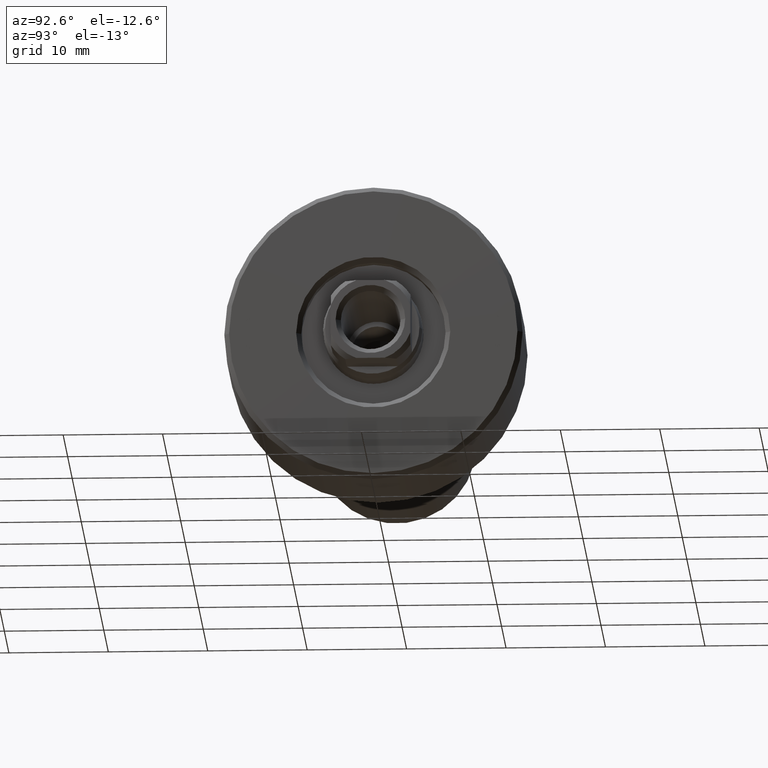
[diagram: clean part render]
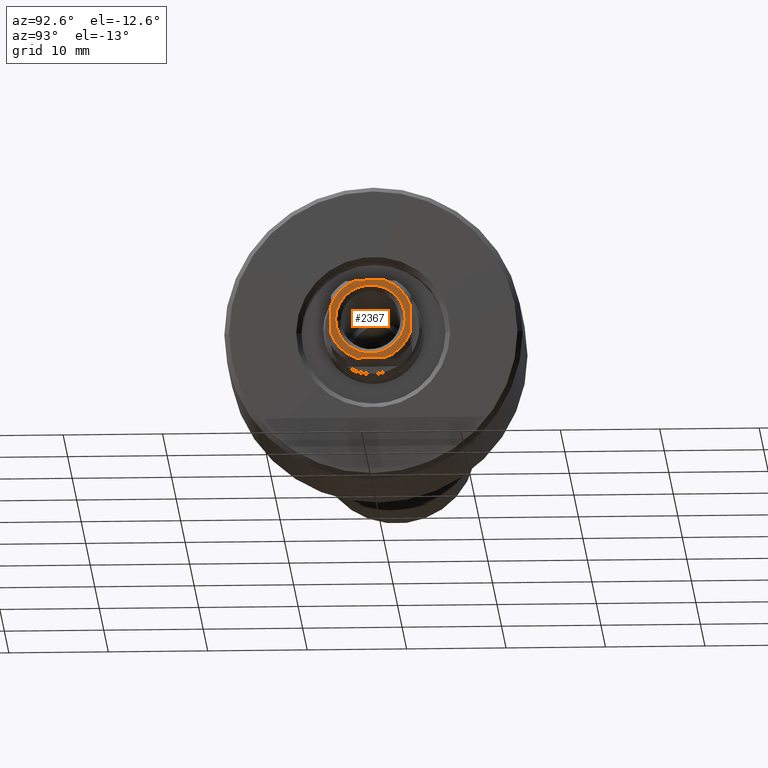
[diagram: same view with one face highlighted and labeled with its STEP entity id]
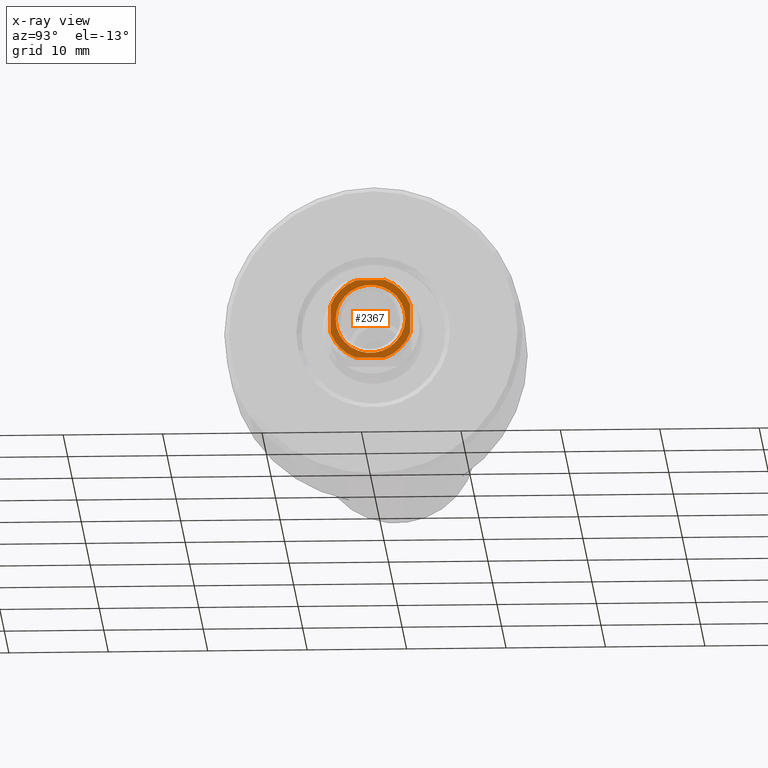
[diagram: x-ray of the same camera — body ghosted, the highlighted face saturated]
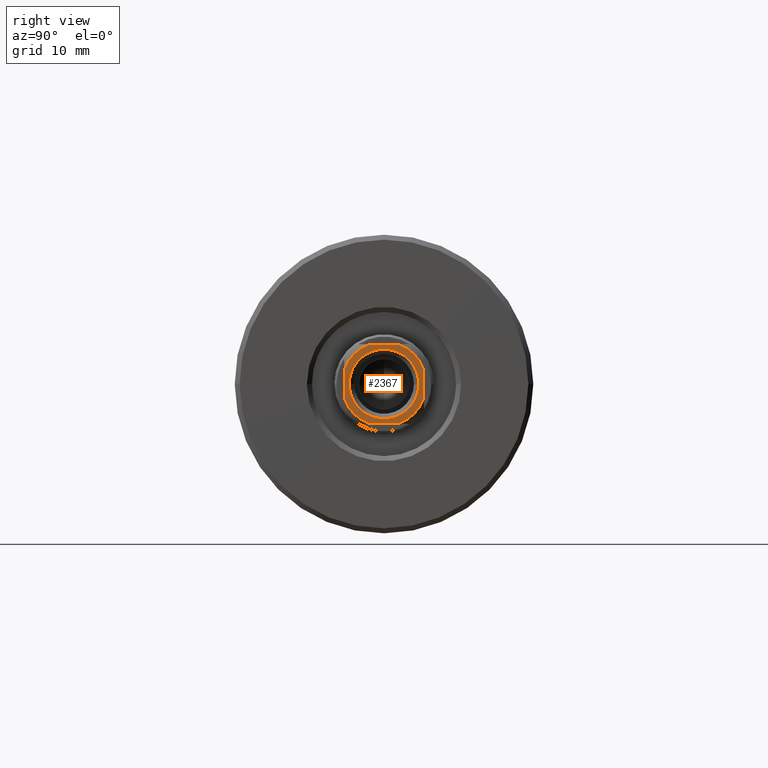
[diagram: same view with one face highlighted and labeled with its STEP entity id]
A machine part, auxiliary view. The second image highlights one B-rep face of the part: STEP entity #2367.
The next image is the same camera in x-ray: the body ghosted, the highlighted face saturated — about 0% of this face is hidden behind the body in this view.
A second angle (right view) of the same face is appended — the face is thin or edge-on in the first view.
In plain terms, the highlighted planar face has unit normal (-1, -0, 0).
Its self-contained STEP definition (entity closure, byte-faithful):
#41 = CARTESIAN_POINT ( 'NONE',  ( 60.00000000000000711, 1.436140661638271698, 3.999999999998825828 ) ) ;
#76 = ORIENTED_EDGE ( 'NONE', *, *, #586, .F. ) ;
#77 = LINE ( 'NONE', #1948, #2352 ) ;
#80 = VERTEX_POINT ( 'NONE', #2415 ) ;
#90 = CARTESIAN_POINT ( 'NONE',  ( 59.99999999999998579, 6.417253932414392401E-16, 0.000000000000000000 ) ) ;
#103 = DIRECTION ( 'NONE',  ( 0.000000000000000000, -1.000000000000000000, 0.000000000000000000 ) ) ;
#150 = DIRECTION ( 'NONE',  ( 1.000000000000000000, 1.069542322069065801E-17, 0.000000000000000000 ) ) ;
#193 = LINE ( 'NONE', #607, #1958 ) ;
#209 = AXIS2_PLACEMENT_3D ( 'NONE', #1116, #2262, #2227 ) ;
#246 = AXIS2_PLACEMENT_3D ( 'NONE', #908, #899, #1333 ) ;
#250 = DIRECTION ( 'NONE',  ( 0.000000000000000000, 1.692916766750681384E-16, -1.000000000000000000 ) ) ;
#326 = AXIS2_PLACEMENT_3D ( 'NONE', #2184, #493, #1080 ) ;
#342 = CARTESIAN_POINT ( 'NONE',  ( 59.99999999999996447, -1.436140661638316773, -3.999999999998825828 ) ) ;
#371 = DIRECTION ( 'NONE',  ( 1.625200096080654050E-14, 1.000000000000000000, 1.692916766750681384E-16 ) ) ;
#416 = DIRECTION ( 'NONE',  ( 1.000000000000000000, 1.069542322069065801E-17, 0.000000000000000000 ) ) ;
#417 = CIRCLE ( 'NONE', #1329, 4.250000000000161648 ) ;
#418 = VECTOR ( 'NONE', #2414, 1000.000000000000000 ) ;
#420 = CIRCLE ( 'NONE', #2008, 4.250000000000166089 ) ;
#428 = VERTEX_POINT ( 'NONE', #1849 ) ;
#450 = ORIENTED_EDGE ( 'NONE', *, *, #2191, .T. ) ;
#493 = DIRECTION ( 'NONE',  ( 1.000000000000000000, 1.069542322069065801E-17, 0.000000000000000000 ) ) ;
#508 = EDGE_CURVE ( 'NONE', #80, #1786, #2012, .T. ) ;
#514 = PLANE ( 'NONE',  #246 ) ;
#519 = CARTESIAN_POINT ( 'NONE',  ( 60.00000000000005684, 3.999999999997831512, -1.436140661641029048 ) ) ;
#556 = FACE_OUTER_BOUND ( 'NONE', #1548, .T. ) ;
#586 = EDGE_CURVE ( 'NONE', #428, #1983, #1873, .T. ) ;
#607 = CARTESIAN_POINT ( 'NONE',  ( 59.99999999999991473, -3.999999999999817923, -2.561737691489840429 ) ) ;
#643 = ORIENTED_EDGE ( 'NONE', *, *, #985, .T. ) ;
#646 = VERTEX_POINT ( 'NONE', #1127 ) ;
#737 = CIRCLE ( 'NONE', #209, 3.500000000000160316 ) ;
#816 = EDGE_CURVE ( 'NONE', #1349, #1983, #1975, .T. ) ;
#852 = DIRECTION ( 'NONE',  ( 0.000000000000000000, -1.000000000000000000, 8.881784197001252323E-16 ) ) ;
#899 = DIRECTION ( 'NONE',  ( -1.000000000000000000, -1.069542322069065801E-17, 0.000000000000000000 ) ) ;
#908 = CARTESIAN_POINT ( 'NONE',  ( 59.99999999999998579, 8.673617379884037444E-16, 0.000000000000000000 ) ) ;
#914 = DIRECTION ( 'NONE',  ( 0.000000000000000000, -1.000000000000000000, 8.881784197001252323E-16 ) ) ;
#984 = CARTESIAN_POINT ( 'NONE',  ( 59.99999999999998579, -3.999999999999817923, -1.436140661635549431 ) ) ;
#985 = EDGE_CURVE ( 'NONE', #1677, #1786, #1325, .T. ) ;
#1028 = AXIS2_PLACEMENT_3D ( 'NONE', #1615, #2172, #103 ) ;
#1073 = EDGE_CURVE ( 'NONE', #1681, #1872, #737, .T. ) ;
#1080 = DIRECTION ( 'NONE',  ( 0.000000000000000000, -1.000000000000000000, 0.000000000000000000 ) ) ;
#1084 = EDGE_LOOP ( 'NONE', ( #2086, #450 ) ) ;
#1109 = CARTESIAN_POINT ( 'NONE',  ( 60.00000000000002842, 2.561737691488845226, -3.999999999998824940 ) ) ;
#1116 = CARTESIAN_POINT ( 'NONE',  ( 59.99999999999998579, -9.943588796953380466E-13, 0.000000000000000000 ) ) ;
#1127 = CARTESIAN_POINT ( 'NONE',  ( 59.99999999999991473, -3.999999999999819700, 1.436140661635499249 ) ) ;
#1229 = EDGE_CURVE ( 'NONE', #1349, #1379, #77, .T. ) ;
#1230 = ORIENTED_EDGE ( 'NONE', *, *, #508, .F. ) ;
#1325 = CIRCLE ( 'NONE', #326, 4.250000000000181188 ) ;
#1329 = AXIS2_PLACEMENT_3D ( 'NONE', #2170, #150, #914 ) ;
#1333 = DIRECTION ( 'NONE',  ( 1.069542322069065801E-17, -1.000000000000000000, 0.000000000000000000 ) ) ;
#1349 = VERTEX_POINT ( 'NONE', #2292 ) ;
#1379 = VERTEX_POINT ( 'NONE', #519 ) ;
#1430 = ORIENTED_EDGE ( 'NONE', *, *, #2403, .F. ) ;
#1471 = EDGE_CURVE ( 'NONE', #80, #1379, #417, .T. ) ;
#1548 = EDGE_LOOP ( 'NONE', ( #1230, #1938, #1607, #1589, #76, #1901, #1430, #643 ) ) ;
#1585 = CARTESIAN_POINT ( 'NONE',  ( 59.99999999999998579, 6.417253932414392401E-16, 0.000000000000000000 ) ) ;
#1589 = ORIENTED_EDGE ( 'NONE', *, *, #816, .T. ) ;
#1607 = ORIENTED_EDGE ( 'NONE', *, *, #1229, .F. ) ;
#1615 = CARTESIAN_POINT ( 'NONE',  ( 59.99999999999998579, -9.943588796953380466E-13, 0.000000000000000000 ) ) ;
#1620 = AXIS2_PLACEMENT_3D ( 'NONE', #90, #416, #852 ) ;
#1677 = VERTEX_POINT ( 'NONE', #984 ) ;
#1681 = VERTEX_POINT ( 'NONE', #1739 ) ;
#1701 = DIRECTION ( 'NONE',  ( 0.000000000000000000, -5.078750300252043906E-16, 1.000000000000000000 ) ) ;
#1703 = EDGE_CURVE ( 'NONE', #428, #646, #420, .T. ) ;
#1739 = CARTESIAN_POINT ( 'NONE',  ( 59.99999999999998579, 3.499999999999166889, 0.000000000000000000 ) ) ;
#1764 = DIRECTION ( 'NONE',  ( 0.000000000000000000, -1.000000000000000000, 5.329070518200751394E-15 ) ) ;
#1777 = CIRCLE ( 'NONE', #1028, 3.500000000000160316 ) ;
#1786 = VERTEX_POINT ( 'NONE', #342 ) ;
#1849 = CARTESIAN_POINT ( 'NONE',  ( 59.99999999999996447, -1.436140661638269700, 3.999999999998825828 ) ) ;
#1872 = VERTEX_POINT ( 'NONE', #1879 ) ;
#1873 = LINE ( 'NONE', #2071, #2115 ) ;
#1879 = CARTESIAN_POINT ( 'NONE',  ( 59.99999999999998579, -3.500000000001269651, 4.286263797016072847E-16 ) ) ;
#1901 = ORIENTED_EDGE ( 'NONE', *, *, #1703, .T. ) ;
#1938 = ORIENTED_EDGE ( 'NONE', *, *, #1471, .T. ) ;
#1948 = CARTESIAN_POINT ( 'NONE',  ( 60.00000000000005684, 3.999999999997830624, 2.561737691489839985 ) ) ;
#1953 = DIRECTION ( 'NONE',  ( 1.000000000000000000, 1.069542322069065801E-17, 0.000000000000000000 ) ) ;
#1958 = VECTOR ( 'NONE', #1701, 1000.000000000000000 ) ;
#1975 = CIRCLE ( 'NONE', #1620, 4.250000000000166089 ) ;
#1983 = VERTEX_POINT ( 'NONE', #41 ) ;
#2008 = AXIS2_PLACEMENT_3D ( 'NONE', #1585, #1953, #1764 ) ;
#2012 = LINE ( 'NONE', #1109, #418 ) ;
#2071 = CARTESIAN_POINT ( 'NONE',  ( 59.99999999999994316, -2.561737691490833857, 3.999999999998824940 ) ) ;
#2086 = ORIENTED_EDGE ( 'NONE', *, *, #1073, .T. ) ;
#2115 = VECTOR ( 'NONE', #371, 1000.000000000000000 ) ;
#2170 = CARTESIAN_POINT ( 'NONE',  ( 59.99999999999998579, 6.417253932414392401E-16, 0.000000000000000000 ) ) ;
#2172 = DIRECTION ( 'NONE',  ( -1.000000000000000000, -1.069542322069065801E-17, -0.000000000000000000 ) ) ;
#2184 = CARTESIAN_POINT ( 'NONE',  ( 59.99999999999998579, 6.417253932414392401E-16, 0.000000000000000000 ) ) ;
#2191 = EDGE_CURVE ( 'NONE', #1872, #1681, #1777, .T. ) ;
#2227 = DIRECTION ( 'NONE',  ( 0.000000000000000000, -1.000000000000000000, 0.000000000000000000 ) ) ;
#2250 = FACE_BOUND ( 'NONE', #1084, .T. ) ;
#2262 = DIRECTION ( 'NONE',  ( -1.000000000000000000, -1.069542322069065801E-17, -0.000000000000000000 ) ) ;
#2292 = CARTESIAN_POINT ( 'NONE',  ( 59.99999999999998579, 3.999999999997830624, 1.436140661641043703 ) ) ;
#2352 = VECTOR ( 'NONE', #250, 1000.000000000000000 ) ;
#2367 = ADVANCED_FACE ( 'NONE', ( #2250, #556 ), #514, .F. ) ;
#2403 = EDGE_CURVE ( 'NONE', #1677, #646, #193, .T. ) ;
#2414 = DIRECTION ( 'NONE',  ( -1.625200096080654050E-14, -1.000000000000000000, -1.692916766750681384E-16 ) ) ;
#2415 = CARTESIAN_POINT ( 'NONE',  ( 60.00000000000000711, 1.436140661638260596, -3.999999999998824940 ) ) ;